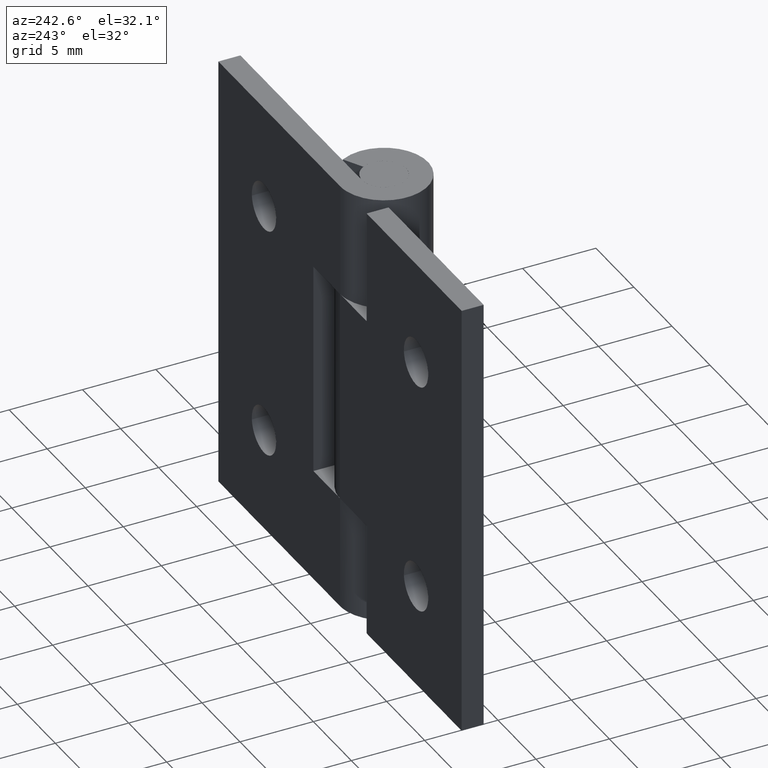
[diagram: clean part render]
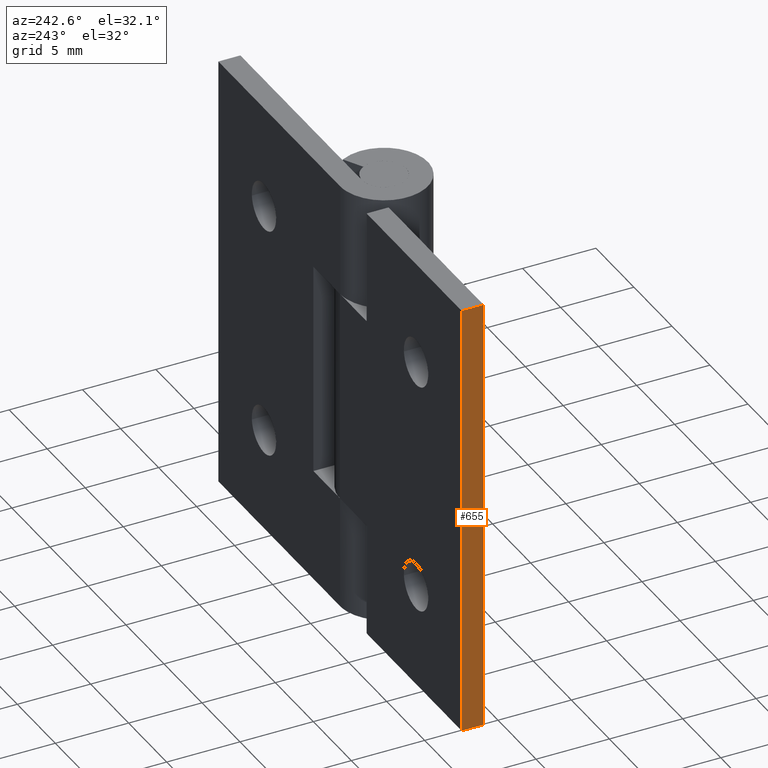
[diagram: same view with one face highlighted and labeled with its STEP entity id]
A machine part, auxiliary view. The second image highlights one B-rep face of the part: STEP entity #655.
In plain terms, the highlighted face is a freeform B-spline surface patch.
Its self-contained STEP definition (entity closure, byte-faithful):
#620=CARTESIAN_POINT('',(-16.0,1.425075002907291,31.498499941854181));
#621=CARTESIAN_POINT('',(-16.0,1.425075002907291,-1.498500746516883));
#622=CARTESIAN_POINT('',(-16.0,3.074925037325845,31.498499941854181));
#623=CARTESIAN_POINT('',(-16.0,3.074925037325845,-1.498500746516883));
#624=B_SPLINE_SURFACE_WITH_KNOTS('',1,1,((#620,#622),(#621,#623)),.UNSPECIFIED.,.F.,.F.,.U.,(2,2),(2,2),(0.0,32.997000688371060),(0.041708334948495,0.958291687403247),.UNSPECIFIED.);
#625=CARTESIAN_POINT('',(-16.0,3.0,0.0));
#626=VERTEX_POINT('',#625);
#627=CARTESIAN_POINT('',(-16.0,1.500000000000000,0.0));
#628=VERTEX_POINT('',#627);
#629=CARTESIAN_POINT('',(-16.0,3.0,0.0));
#630=CARTESIAN_POINT('',(-16.0,1.500000000000000,0.0));
#631=QUASI_UNIFORM_CURVE('',1,(#629,#630),.UNSPECIFIED.,.F.,.U.);
#632=EDGE_CURVE('',#626,#628,#631,.T.);
#633=ORIENTED_EDGE('',*,*,#632,.T.);
#634=CARTESIAN_POINT('',(-16.0,1.500000000000000,30.0));
#635=VERTEX_POINT('',#634);
#636=CARTESIAN_POINT('',(-16.0,1.500000000000000,30.0));
#637=CARTESIAN_POINT('',(-16.0,1.500000000000000,0.0));
#638=QUASI_UNIFORM_CURVE('',1,(#636,#637),.UNSPECIFIED.,.F.,.U.);
#639=EDGE_CURVE('',#635,#628,#638,.T.);
#640=ORIENTED_EDGE('',*,*,#639,.F.);
#641=CARTESIAN_POINT('',(-16.0,3.0,30.0));
#642=VERTEX_POINT('',#641);
#643=CARTESIAN_POINT('',(-16.0,3.0,30.0));
#644=CARTESIAN_POINT('',(-16.0,1.500000000000000,30.0));
#645=QUASI_UNIFORM_CURVE('',1,(#643,#644),.UNSPECIFIED.,.F.,.U.);
#646=EDGE_CURVE('',#642,#635,#645,.T.);
#647=ORIENTED_EDGE('',*,*,#646,.F.);
#648=CARTESIAN_POINT('',(-16.0,3.0,30.0));
#649=CARTESIAN_POINT('',(-16.0,3.0,0.0));
#650=QUASI_UNIFORM_CURVE('',1,(#648,#649),.UNSPECIFIED.,.F.,.U.);
#651=EDGE_CURVE('',#642,#626,#650,.T.);
#652=ORIENTED_EDGE('',*,*,#651,.T.);
#653=EDGE_LOOP('',(#633,#640,#647,#652));
#654=FACE_OUTER_BOUND('',#653,.T.);
#655=ADVANCED_FACE('',(#654),#624,.F.);